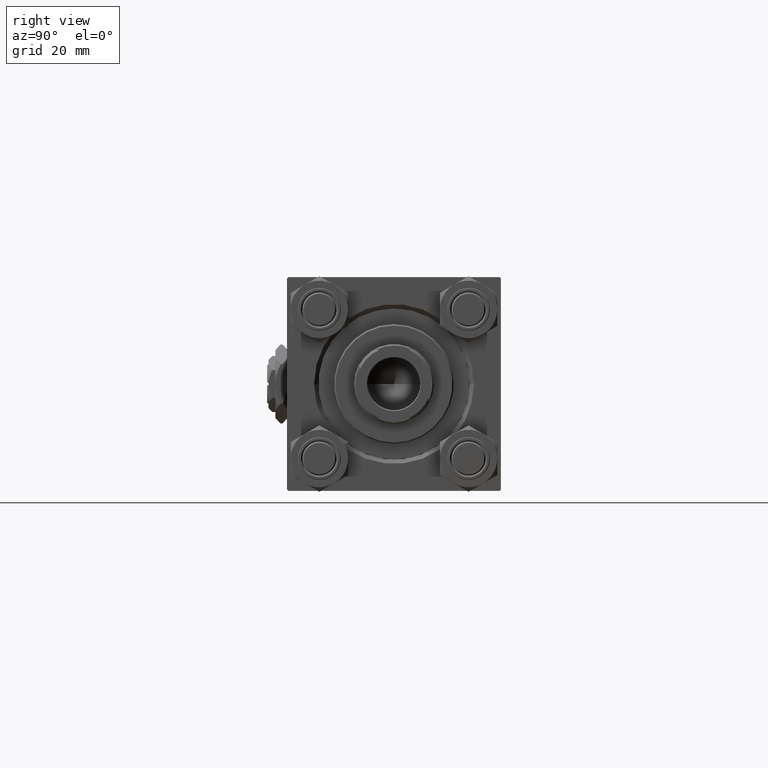
[diagram: clean part render]
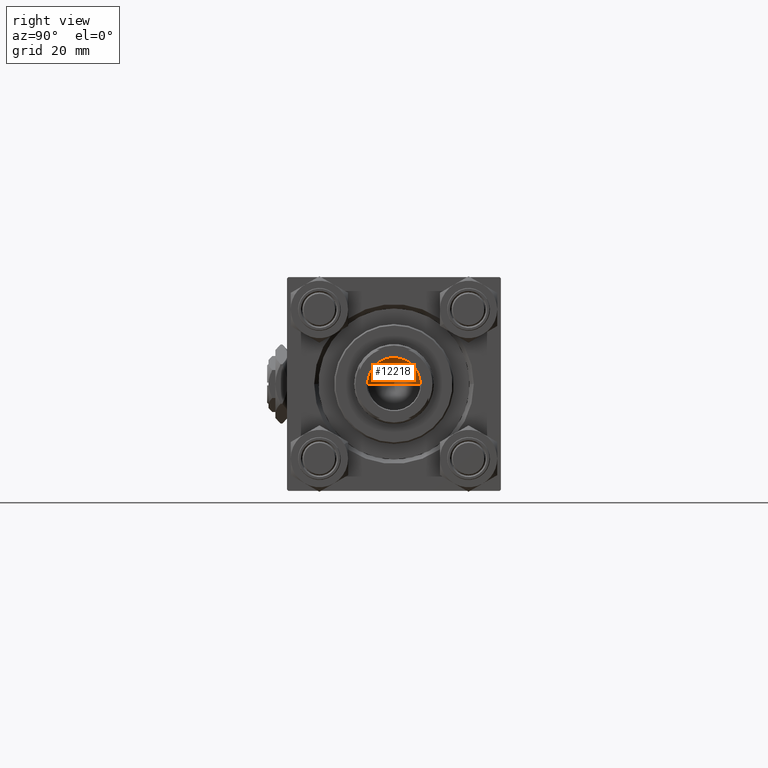
[diagram: same view with one face highlighted and labeled with its STEP entity id]
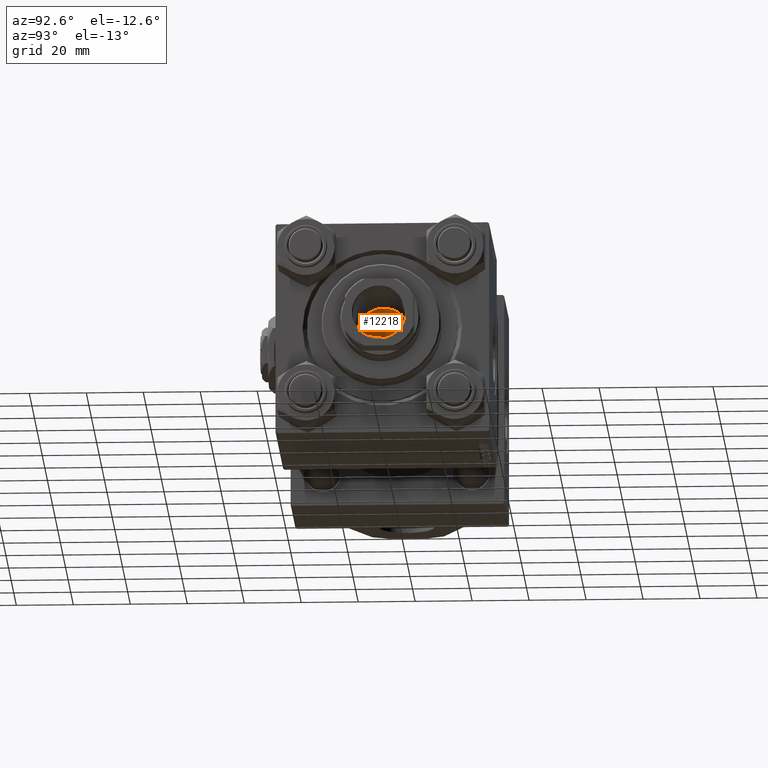
[diagram: same view with one face highlighted and labeled with its STEP entity id]
A machine part, right view. The second image highlights one B-rep face of the part: STEP entity #12218.
A second angle (auxiliary view) of the same face is appended — the face is thin or edge-on in the first view.
In plain terms, the highlighted conical surface has half-angle 59 deg.
Its self-contained STEP definition (entity closure, byte-faithful):
#655 = CARTESIAN_POINT ( 'NONE',  ( -9.249999999999992895, 1.132798289211300712E-15, 107.0000000000000142 ) ) ;
#757 = CIRCLE ( 'NONE', #28148, 9.249999999999992895 ) ;
#919 = LINE ( 'NONE', #655, #33439 ) ;
#1523 = VERTEX_POINT ( 'NONE', #29984 ) ;
#4121 = VECTOR ( 'NONE', #21232, 1000.000000000000000 ) ;
#4469 = CARTESIAN_POINT ( 'NONE',  ( -9.769621978240258809E-15, 0.000000000000000000, 101.4420392739950785 ) ) ;
#8640 = EDGE_CURVE ( 'NONE', #25053, #1523, #919, .T. ) ;
#9292 = CARTESIAN_POINT ( 'NONE',  ( 9.249999999999992895, 0.000000000000000000, 107.0000000000000142 ) ) ;
#10847 = DIRECTION ( 'NONE',  ( -0.000000000000000000, -0.000000000000000000, 1.000000000000000000 ) ) ;
#11611 = DIRECTION ( 'NONE',  ( 1.000000000000000000, 0.000000000000000000, 0.000000000000000000 ) ) ;
#12218 = ADVANCED_FACE ( 'NONE', ( #33102 ), #18663, .F. ) ;
#15300 = CARTESIAN_POINT ( 'NONE',  ( 9.249999999999992895, 0.000000000000000000, 107.0000000000000142 ) ) ;
#17505 = DIRECTION ( 'NONE',  ( -0.000000000000000000, -0.000000000000000000, 1.000000000000000000 ) ) ;
#18663 = CONICAL_SURFACE ( 'NONE', #47741, 9.249999999999992895, 1.029744258676653423 ) ;
#21232 = DIRECTION ( 'NONE',  ( 0.8571673007021117785, 0.000000000000000000, 0.5150380749100550437 ) ) ;
#21342 = ORIENTED_EDGE ( 'NONE', *, *, #8640, .T. ) ;
#23310 = CARTESIAN_POINT ( 'NONE',  ( 0.000000000000000000, 0.000000000000000000, 107.0000000000000142 ) ) ;
#23646 = VERTEX_POINT ( 'NONE', #15300 ) ;
#23686 = EDGE_CURVE ( 'NONE', #25053, #23646, #48035, .T. ) ;
#24061 = DIRECTION ( 'NONE',  ( -0.8571673007021117785, 1.049727191138617956E-16, 0.5150380749100550437 ) ) ;
#25053 = VERTEX_POINT ( 'NONE', #4469 ) ;
#27041 = EDGE_LOOP ( 'NONE', ( #45591, #21342, #44364 ) ) ;
#28148 = AXIS2_PLACEMENT_3D ( 'NONE', #23310, #10847, #11611 ) ;
#29219 = CARTESIAN_POINT ( 'NONE',  ( 0.000000000000000000, 0.000000000000000000, 107.0000000000000142 ) ) ;
#29984 = CARTESIAN_POINT ( 'NONE',  ( -9.249999999999992895, 1.132798289211300712E-15, 107.0000000000000142 ) ) ;
#33102 = FACE_OUTER_BOUND ( 'NONE', #27041, .T. ) ;
#33439 = VECTOR ( 'NONE', #24061, 1000.000000000000000 ) ;
#44364 = ORIENTED_EDGE ( 'NONE', *, *, #47022, .T. ) ;
#44825 = DIRECTION ( 'NONE',  ( 1.000000000000000000, 0.000000000000000000, 0.000000000000000000 ) ) ;
#45591 = ORIENTED_EDGE ( 'NONE', *, *, #23686, .F. ) ;
#47022 = EDGE_CURVE ( 'NONE', #1523, #23646, #757, .T. ) ;
#47741 = AXIS2_PLACEMENT_3D ( 'NONE', #29219, #17505, #44825 ) ;
#48035 = LINE ( 'NONE', #9292, #4121 ) ;